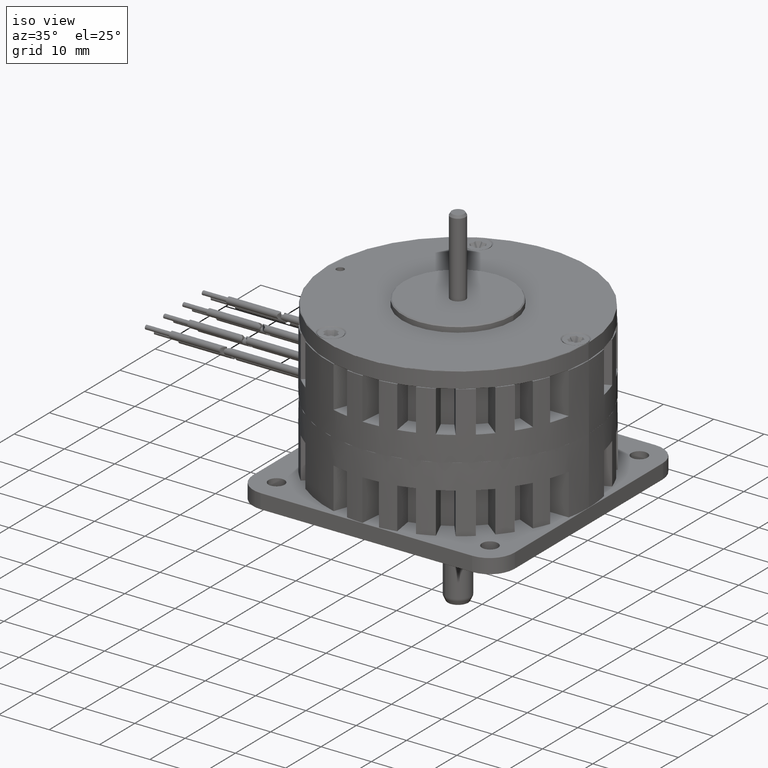
[diagram: clean part render]
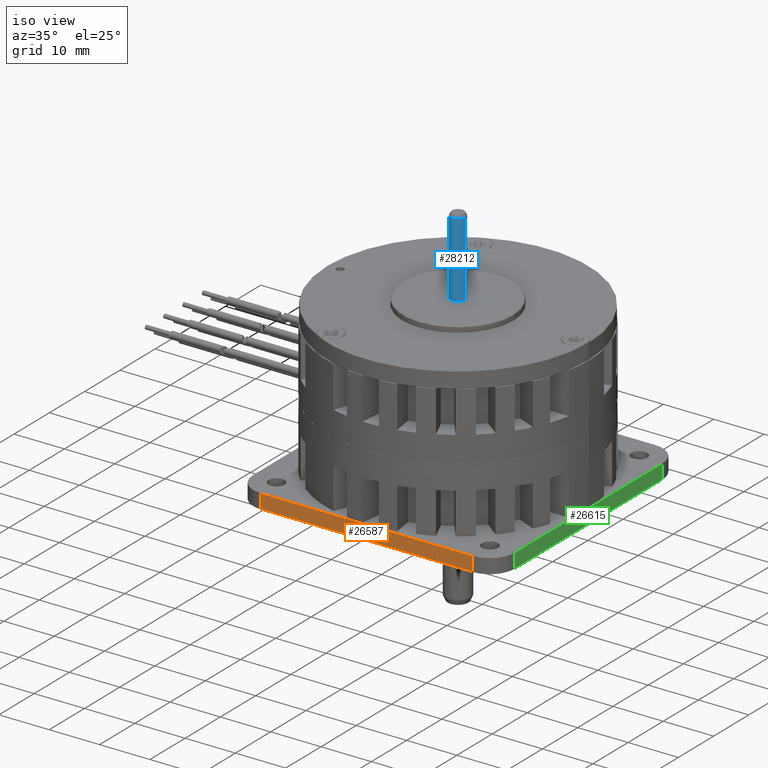
[diagram: same view with three faces highlighted in distinct colors, each labeled with its STEP entity id]
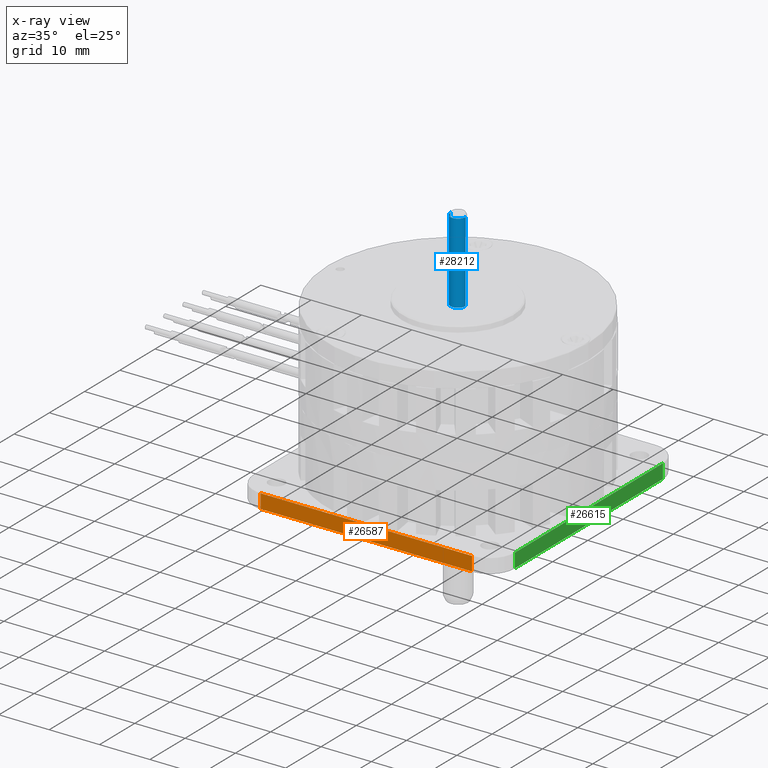
[diagram: x-ray of the same camera — body ghosted, the three highlighted faces saturated]
A machine part, iso view with three faces highlighted in distinct colors.
The next image is the same camera in x-ray (body ghosted, the three faces saturated) — at least one of them is partly hidden behind the body in this view.
Their STEP definitions:

[orange] entity #26587 — the highlighted planar face has unit normal (0, 1, 0).
#25841=DIRECTION('',(-1.E0,0.E0,0.E0));
#25842=VECTOR('',#25841,4.2E1);
#25843=CARTESIAN_POINT('',(2.1E1,-2.6E1,2.9E0));
#25844=LINE('',#25843,#25842);
#25853=DIRECTION('',(0.E0,0.E0,1.E0));
#25854=VECTOR('',#25853,2.8E0);
#25855=CARTESIAN_POINT('',(2.1E1,-2.6E1,1.E-1));
#25856=LINE('',#25855,#25854);
#25873=DIRECTION('',(0.E0,0.E0,-1.E0));
#25874=VECTOR('',#25873,2.8E0);
#25875=CARTESIAN_POINT('',(-2.1E1,-2.6E1,2.9E0));
#25876=LINE('',#25875,#25874);
#25900=DIRECTION('',(1.E0,0.E0,0.E0));
#25901=VECTOR('',#25900,4.2E1);
#25902=CARTESIAN_POINT('',(-2.1E1,-2.6E1,1.E-1));
#25903=LINE('',#25902,#25901);
#26281=CARTESIAN_POINT('',(2.1E1,-2.6E1,2.9E0));
#26282=VERTEX_POINT('',#26281);
#26283=CARTESIAN_POINT('',(-2.1E1,-2.6E1,2.9E0));
#26284=VERTEX_POINT('',#26283);
#26285=CARTESIAN_POINT('',(2.1E1,-2.6E1,1.E-1));
#26286=VERTEX_POINT('',#26285);
#26287=CARTESIAN_POINT('',(-2.1E1,-2.6E1,1.E-1));
#26288=VERTEX_POINT('',#26287);
#26573=CARTESIAN_POINT('',(-2.6E1,-2.6E1,3.E0));
#26574=DIRECTION('',(0.E0,1.E0,0.E0));
#26575=DIRECTION('',(-1.E0,0.E0,0.E0));
#26576=AXIS2_PLACEMENT_3D('',#26573,#26574,#26575);
#26577=PLANE('',#26576);
#26579=ORIENTED_EDGE('',*,*,#26578,.F.);
#26581=ORIENTED_EDGE('',*,*,#26580,.F.);
#26583=ORIENTED_EDGE('',*,*,#26582,.F.);
#26584=ORIENTED_EDGE('',*,*,#26565,.F.);
#26585=EDGE_LOOP('',(#26579,#26581,#26583,#26584));
#26586=FACE_OUTER_BOUND('',#26585,.F.);
#26587=ADVANCED_FACE('',(#26586),#26577,.F.);
#26565=EDGE_CURVE('',#26282,#26284,#25844,.T.);
#26578=EDGE_CURVE('',#26286,#26282,#25856,.T.);
#26580=EDGE_CURVE('',#26288,#26286,#25903,.T.);
#26582=EDGE_CURVE('',#26284,#26288,#25876,.T.);

[blue] entity #28212 — the highlighted cylindrical surface (edge-blend (fillet) strip) has radius 1.5 mm, axis along (0, 0, 1).
#28128=CARTESIAN_POINT('',(0.E0,0.E0,0.E0));
#28129=DIRECTION('',(0.E0,0.E0,-1.E0));
#28130=DIRECTION('',(-1.E0,0.E0,0.E0));
#28131=AXIS2_PLACEMENT_3D('',#28128,#28129,#28130);
#28138=CARTESIAN_POINT('',(0.E0,0.E0,-1.6E1));
#28139=DIRECTION('',(0.E0,0.E0,-1.E0));
#28140=DIRECTION('',(-1.E0,0.E0,0.E0));
#28141=AXIS2_PLACEMENT_3D('',#28138,#28139,#28140);
#28143=DIRECTION('',(3.385636907729E-10,-3.539962762397E-9,-1.E0));
#28144=VECTOR('',#28143,1.600000000938E1);
#28145=CARTESIAN_POINT('',(-1.5E0,0.E0,0.E0));
#28146=LINE('',#28145,#28144);
#28170=DIRECTION('',(-3.385636907729E-10,3.539962752390E-9,-1.E0));
#28171=VECTOR('',#28170,1.600000000938E1);
#28172=CARTESIAN_POINT('',(1.5E0,0.E0,0.E0));
#28173=LINE('',#28172,#28171);
#28174=CARTESIAN_POINT('',(-1.5E0,0.E0,0.E0));
#28175=CARTESIAN_POINT('',(1.5E0,0.E0,0.E0));
#28176=VERTEX_POINT('',#28174);
#28177=VERTEX_POINT('',#28175);
#28182=CARTESIAN_POINT('',(1.5E0,0.E0,-1.6E1));
#28183=CARTESIAN_POINT('',(-1.5E0,0.E0,-1.6E1));
#28184=VERTEX_POINT('',#28182);
#28185=VERTEX_POINT('',#28183);
#28198=CARTESIAN_POINT('',(0.E0,0.E0,0.E0));
#28199=DIRECTION('',(0.E0,0.E0,-1.E0));
#28200=DIRECTION('',(-1.E0,0.E0,0.E0));
#28201=AXIS2_PLACEMENT_3D('',#28198,#28199,#28200);
#28202=CYLINDRICAL_SURFACE('',#28201,1.5E0);
#28204=ORIENTED_EDGE('',*,*,#28203,.T.);
#28206=ORIENTED_EDGE('',*,*,#28205,.F.);
#28207=ORIENTED_EDGE('',*,*,#28191,.F.);
#28209=ORIENTED_EDGE('',*,*,#28208,.T.);
#28210=EDGE_LOOP('',(#28204,#28206,#28207,#28209));
#28211=FACE_OUTER_BOUND('',#28210,.F.);
#28212=ADVANCED_FACE('',(#28211),#28202,.T.);
#28132=CIRCLE('',#28131,1.5E0);
#28142=CIRCLE('',#28141,1.5E0);
#28191=EDGE_CURVE('',#28176,#28177,#28132,.T.);
#28203=EDGE_CURVE('',#28185,#28184,#28142,.T.);
#28205=EDGE_CURVE('',#28177,#28184,#28173,.T.);
#28208=EDGE_CURVE('',#28176,#28185,#28146,.T.);

[green] entity #26615 — the highlighted planar face has unit normal (1, 0, 0).
#25822=DIRECTION('',(0.E0,-1.E0,0.E0));
#25823=VECTOR('',#25822,4.2E1);
#25824=CARTESIAN_POINT('',(2.6E1,2.1E1,2.9E0));
#25825=LINE('',#25824,#25823);
#25849=DIRECTION('',(0.E0,0.E0,-1.E0));
#25850=VECTOR('',#25849,2.8E0);
#25851=CARTESIAN_POINT('',(2.6E1,-2.1E1,2.9E0));
#25852=LINE('',#25851,#25850);
#25861=DIRECTION('',(0.E0,0.E0,1.E0));
#25862=VECTOR('',#25861,2.8E0);
#25863=CARTESIAN_POINT('',(2.6E1,2.1E1,1.E-1));
#25864=LINE('',#25863,#25862);
#25919=DIRECTION('',(0.E0,1.E0,0.E0));
#25920=VECTOR('',#25919,4.2E1);
#25921=CARTESIAN_POINT('',(2.6E1,-2.1E1,1.E-1));
#25922=LINE('',#25921,#25920);
#26277=CARTESIAN_POINT('',(2.6E1,2.1E1,2.9E0));
#26278=VERTEX_POINT('',#26277);
#26279=CARTESIAN_POINT('',(2.6E1,-2.1E1,2.9E0));
#26280=VERTEX_POINT('',#26279);
#26289=CARTESIAN_POINT('',(2.6E1,-2.1E1,1.E-1));
#26290=VERTEX_POINT('',#26289);
#26291=CARTESIAN_POINT('',(2.6E1,2.1E1,1.E-1));
#26292=VERTEX_POINT('',#26291);
#26602=CARTESIAN_POINT('',(2.6E1,2.6E1,3.E0));
#26603=DIRECTION('',(1.E0,0.E0,0.E0));
#26604=DIRECTION('',(0.E0,1.E0,0.E0));
#26605=AXIS2_PLACEMENT_3D('',#26602,#26603,#26604);
#26606=PLANE('',#26605);
#26608=ORIENTED_EDGE('',*,*,#26607,.F.);
#26610=ORIENTED_EDGE('',*,*,#26609,.F.);
#26611=ORIENTED_EDGE('',*,*,#26593,.F.);
#26612=ORIENTED_EDGE('',*,*,#26540,.F.);
#26613=EDGE_LOOP('',(#26608,#26610,#26611,#26612));
#26614=FACE_OUTER_BOUND('',#26613,.F.);
#26615=ADVANCED_FACE('',(#26614),#26606,.T.);
#26540=EDGE_CURVE('',#26278,#26280,#25825,.T.);
#26593=EDGE_CURVE('',#26280,#26290,#25852,.T.);
#26607=EDGE_CURVE('',#26292,#26278,#25864,.T.);
#26609=EDGE_CURVE('',#26290,#26292,#25922,.T.);